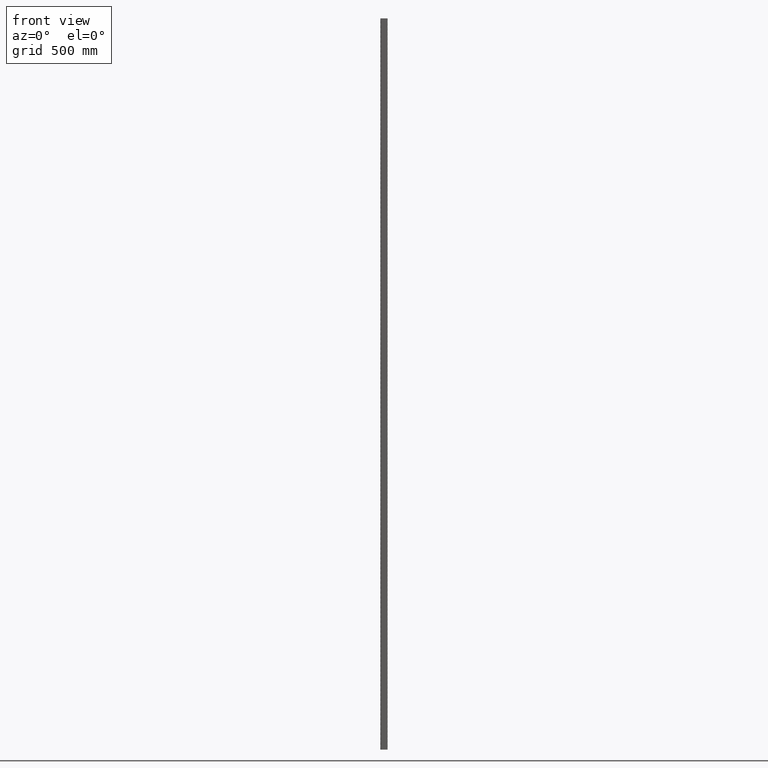
[diagram: clean part render]
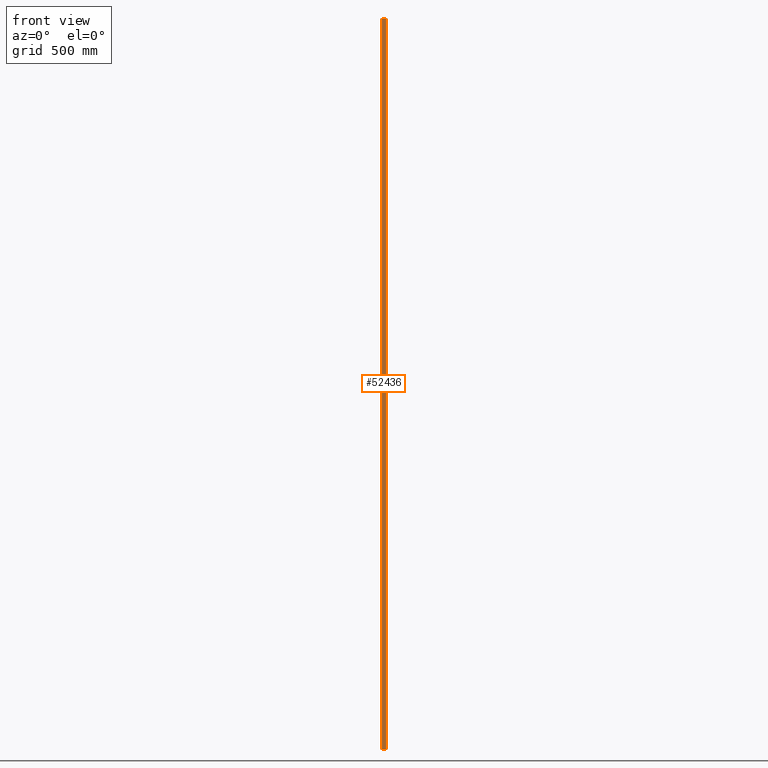
[diagram: same view with one face highlighted and labeled with its STEP entity id]
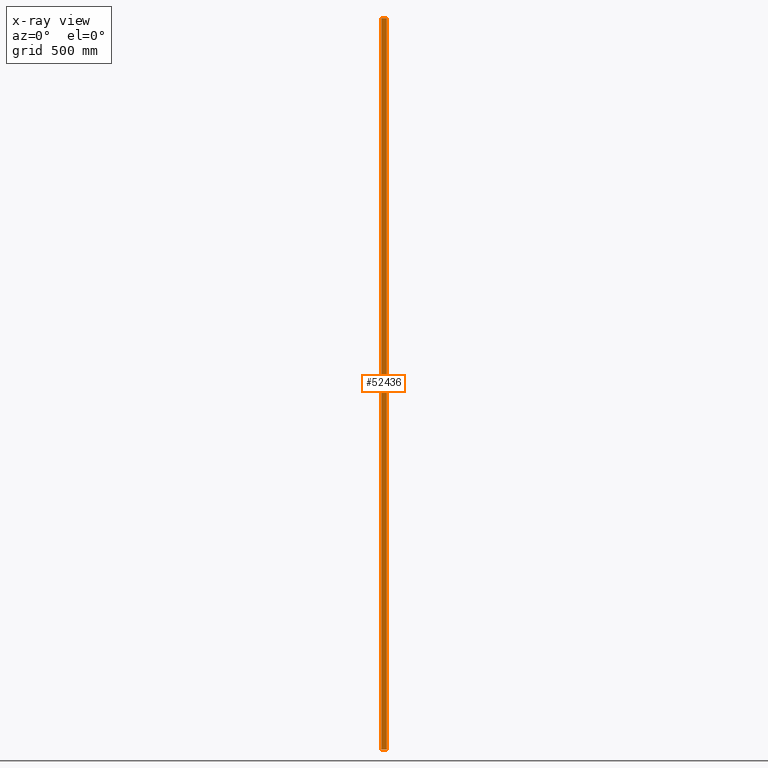
[diagram: x-ray of the same camera — body ghosted, the highlighted face saturated]
A machine part, front view. The second image highlights one B-rep face of the part: STEP entity #52436.
The next image is the same camera in x-ray: the body ghosted, the highlighted face saturated — about 0% of this face is hidden behind the body in this view.
In plain terms, the highlighted planar face has unit normal (0, -1, 0).
Its self-contained STEP definition (entity closure, byte-faithful):
#3473 = CARTESIAN_POINT ( 'NONE',  ( -11.24999999999999645, -14.99999999999999822, -3000.000000000000000 ) ) ;
#8449 = ORIENTED_EDGE ( 'NONE', *, *, #127993, .T. ) ;
#13492 = ORIENTED_EDGE ( 'NONE', *, *, #120710, .T. ) ;
#17228 = CARTESIAN_POINT ( 'NONE',  ( -14.99999999999999645, -14.99999999999999822, 0.000000000000000000 ) ) ;
#28082 = CARTESIAN_POINT ( 'NONE',  ( -14.99999999999999645, -14.99999999999999822, -3000.000000000000000 ) ) ;
#33818 = VECTOR ( 'NONE', #96899, 1000.000000000000000 ) ;
#33860 = LINE ( 'NONE', #83895, #64743 ) ;
#34086 = VECTOR ( 'NONE', #69356, 1000.000000000000000 ) ;
#34828 = CARTESIAN_POINT ( 'NONE',  ( 11.25000000000000355, -14.99999999999999822, -3000.000000000000000 ) ) ;
#35297 = VECTOR ( 'NONE', #107331, 1000.000000000000000 ) ;
#38228 = CARTESIAN_POINT ( 'NONE',  ( -11.24999999999999645, -14.99999999999999822, -3000.000000000000000 ) ) ;
#44799 = VERTEX_POINT ( 'NONE', #34828 ) ;
#46563 = FACE_OUTER_BOUND ( 'NONE', #84950, .T. ) ;
#49678 = VERTEX_POINT ( 'NONE', #55305 ) ;
#51955 = DIRECTION ( 'NONE',  ( 0.000000000000000000, -0.000000000000000000, -1.000000000000000000 ) ) ;
#52436 = ADVANCED_FACE ( 'NONE', ( #46563 ), #54529, .T. ) ;
#54529 = PLANE ( 'NONE',  #64640 ) ;
#55305 = CARTESIAN_POINT ( 'NONE',  ( -11.24999999999999645, -14.99999999999999822, 0.000000000000000000 ) ) ;
#55443 = ORIENTED_EDGE ( 'NONE', *, *, #67981, .T. ) ;
#64640 = AXIS2_PLACEMENT_3D ( 'NONE', #71829, #74013, #51955 ) ;
#64743 = VECTOR ( 'NONE', #90386, 1000.000000000000000 ) ;
#67981 = EDGE_CURVE ( 'NONE', #44799, #73487, #33860, .T. ) ;
#69356 = DIRECTION ( 'NONE',  ( -0.000000000000000000, -0.000000000000000000, -1.000000000000000000 ) ) ;
#71829 = CARTESIAN_POINT ( 'NONE',  ( -14.99999999999999645, -14.99999999999999822, -3000.000000000000000 ) ) ;
#73487 = VERTEX_POINT ( 'NONE', #74321 ) ;
#74013 = DIRECTION ( 'NONE',  ( 0.000000000000000000, -1.000000000000000000, 0.000000000000000000 ) ) ;
#74321 = CARTESIAN_POINT ( 'NONE',  ( 11.25000000000000355, -14.99999999999999822, 0.000000000000000000 ) ) ;
#83366 = LINE ( 'NONE', #28082, #35297 ) ;
#83895 = CARTESIAN_POINT ( 'NONE',  ( 11.25000000000000355, -14.99999999999999822, -3000.000000000000000 ) ) ;
#84950 = EDGE_LOOP ( 'NONE', ( #98145, #13492, #8449, #55443 ) ) ;
#90386 = DIRECTION ( 'NONE',  ( 0.000000000000000000, 0.000000000000000000, 1.000000000000000000 ) ) ;
#96899 = DIRECTION ( 'NONE',  ( 1.000000000000000000, 0.000000000000000000, 0.000000000000000000 ) ) ;
#98145 = ORIENTED_EDGE ( 'NONE', *, *, #128045, .F. ) ;
#105420 = LINE ( 'NONE', #38228, #34086 ) ;
#107331 = DIRECTION ( 'NONE',  ( 1.000000000000000000, 0.000000000000000000, 0.000000000000000000 ) ) ;
#110897 = VERTEX_POINT ( 'NONE', #3473 ) ;
#112893 = LINE ( 'NONE', #17228, #33818 ) ;
#120710 = EDGE_CURVE ( 'NONE', #49678, #110897, #105420, .T. ) ;
#127993 = EDGE_CURVE ( 'NONE', #110897, #44799, #83366, .T. ) ;
#128045 = EDGE_CURVE ( 'NONE', #49678, #73487, #112893, .T. ) ;